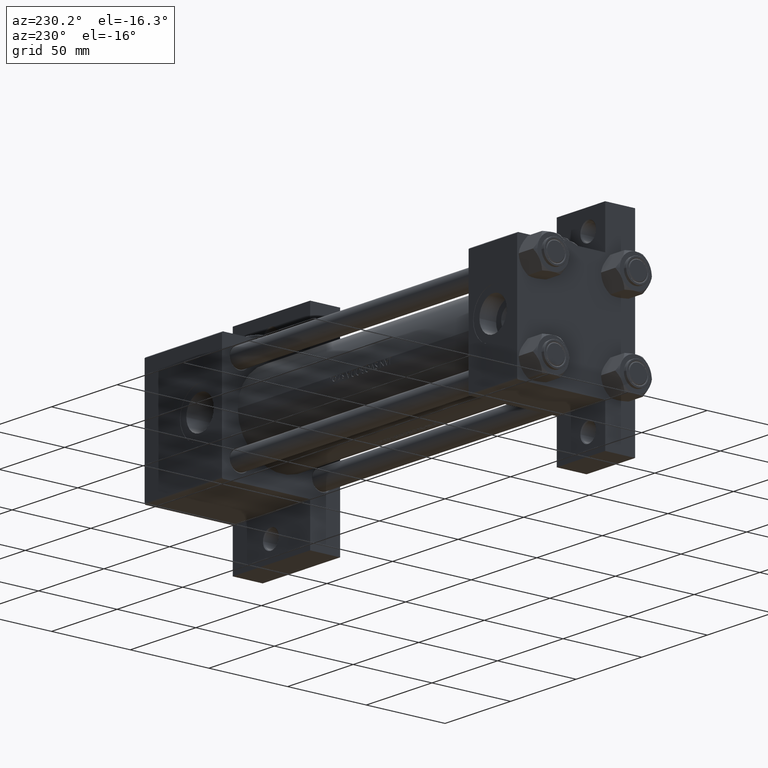
[diagram: clean part render]
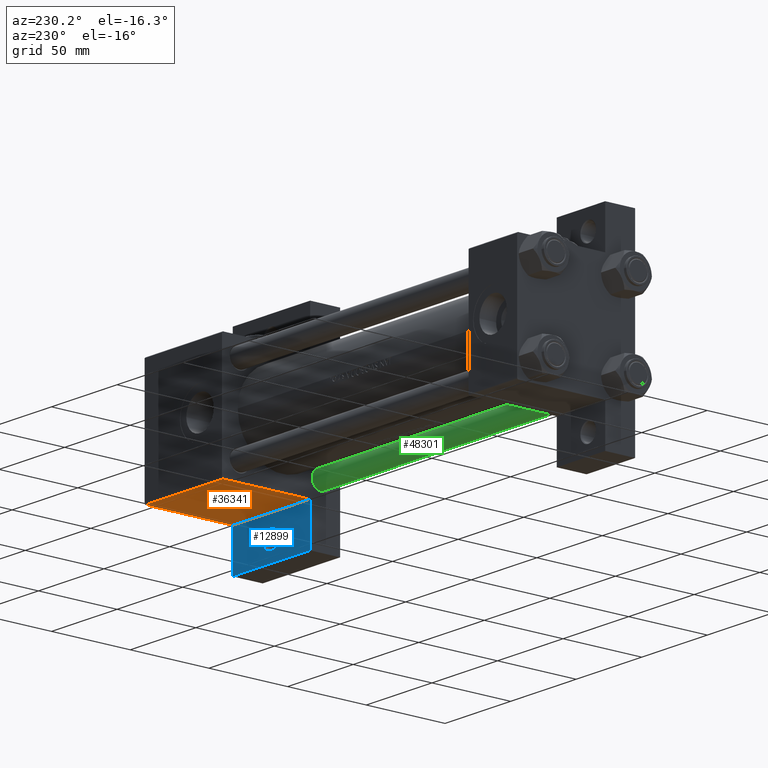
[diagram: same view with three faces highlighted in distinct colors, each labeled with its STEP entity id]
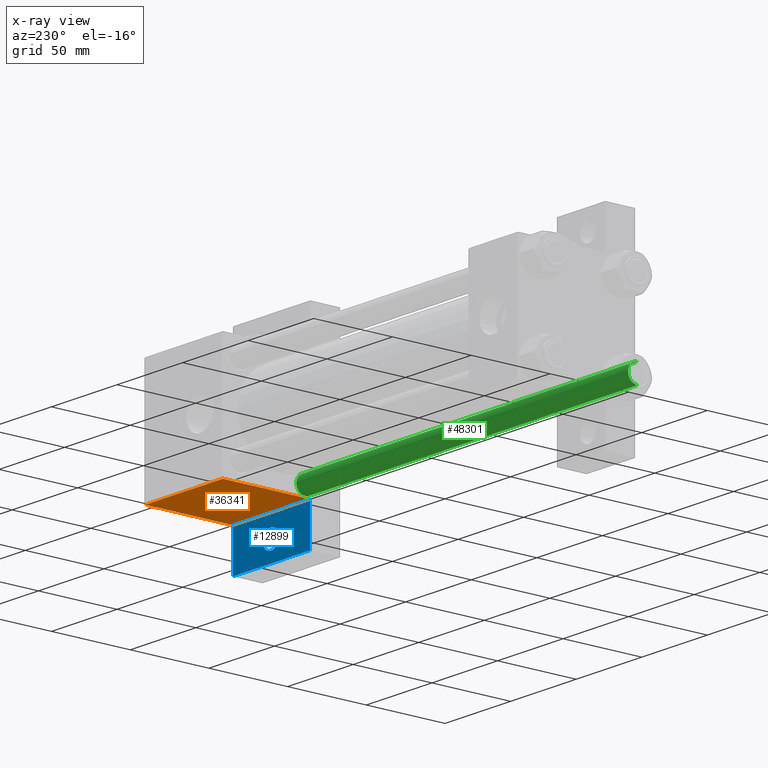
[diagram: x-ray of the same camera — body ghosted, the three highlighted faces saturated]
A machine part, auxiliary view with three faces highlighted in distinct colors.
The next image is the same camera in x-ray (body ghosted, the three faces saturated) — at least one of them is partly hidden behind the body in this view.
Their STEP definitions:

[orange] entity #36341 — the highlighted planar face has unit normal (0, 0, -1).
#225 = LINE ( 'NONE', #7998, #8694 ) ;
#1497 = VECTOR ( 'NONE', #32922, 1000.000000000000000 ) ;
#2324 = DIRECTION ( 'NONE',  ( -1.000000000000000000, 8.232585987686542394E-16, -0.000000000000000000 ) ) ;
#2796 = CARTESIAN_POINT ( 'NONE',  ( 225.0000000000000000, 37.50000000000000000, -18.50000000000000355 ) ) ;
#4299 = CARTESIAN_POINT ( 'NONE',  ( 284.0000000000000568, 37.50000000000000000, 37.49999999999999289 ) ) ;
#5156 = EDGE_LOOP ( 'NONE', ( #27177, #25109, #43559, #41356 ) ) ;
#7086 = DIRECTION ( 'NONE',  ( 0.000000000000000000, -0.000000000000000000, 1.000000000000000000 ) ) ;
#7998 = CARTESIAN_POINT ( 'NONE',  ( 225.0000000000000000, 37.50000000000000000, 37.49999999999999289 ) ) ;
#8694 = VECTOR ( 'NONE', #31070, 1000.000000000000000 ) ;
#13186 = EDGE_CURVE ( 'NONE', #38736, #15064, #35686, .T. ) ;
#13568 = CARTESIAN_POINT ( 'NONE',  ( 284.0000000000000568, 37.50000000000000000, 36.99999999999993605 ) ) ;
#14323 = VERTEX_POINT ( 'NONE', #28110 ) ;
#15064 = VERTEX_POINT ( 'NONE', #2796 ) ;
#19361 = FACE_OUTER_BOUND ( 'NONE', #5156, .T. ) ;
#19614 = DIRECTION ( 'NONE',  ( -0.000000000000000000, 1.000000000000000000, 0.000000000000000000 ) ) ;
#20891 = CARTESIAN_POINT ( 'NONE',  ( 225.0000000000000284, 37.50000000000000000, -18.50000000000000000 ) ) ;
#25109 = ORIENTED_EDGE ( 'NONE', *, *, #26526, .T. ) ;
#26526 = EDGE_CURVE ( 'NONE', #14323, #30710, #47914, .T. ) ;
#27177 = ORIENTED_EDGE ( 'NONE', *, *, #48909, .F. ) ;
#28110 = CARTESIAN_POINT ( 'NONE',  ( 225.0000000000000000, 37.50000000000000000, 36.99999999999993605 ) ) ;
#28842 = DIRECTION ( 'NONE',  ( 1.000000000000000000, 0.000000000000000000, 0.000000000000000000 ) ) ;
#29686 = VECTOR ( 'NONE', #28842, 1000.000000000000000 ) ;
#30710 = VERTEX_POINT ( 'NONE', #39448 ) ;
#31070 = DIRECTION ( 'NONE',  ( 0.000000000000000000, 0.000000000000000000, -1.000000000000000000 ) ) ;
#32677 = LINE ( 'NONE', #43962, #1497 ) ;
#32922 = DIRECTION ( 'NONE',  ( 0.000000000000000000, 0.000000000000000000, -1.000000000000000000 ) ) ;
#33061 = CARTESIAN_POINT ( 'NONE',  ( 284.0000000000000568, 37.49999999999995026, -18.50000000000000000 ) ) ;
#34649 = PLANE ( 'NONE',  #46828 ) ;
#35686 = LINE ( 'NONE', #20891, #47502 ) ;
#36341 = ADVANCED_FACE ( 'NONE', ( #19361 ), #34649, .T. ) ;
#38736 = VERTEX_POINT ( 'NONE', #33061 ) ;
#39448 = CARTESIAN_POINT ( 'NONE',  ( 284.0000000000000568, 37.50000000000000000, 36.99999999999993605 ) ) ;
#41356 = ORIENTED_EDGE ( 'NONE', *, *, #13186, .T. ) ;
#43559 = ORIENTED_EDGE ( 'NONE', *, *, #48786, .T. ) ;
#43962 = CARTESIAN_POINT ( 'NONE',  ( 284.0000000000000568, 37.50000000000000000, 37.49999999999999289 ) ) ;
#46828 = AXIS2_PLACEMENT_3D ( 'NONE', #4299, #19614, #7086 ) ;
#47502 = VECTOR ( 'NONE', #2324, 1000.000000000000000 ) ;
#47914 = LINE ( 'NONE', #13568, #29686 ) ;
#48786 = EDGE_CURVE ( 'NONE', #30710, #38736, #32677, .T. ) ;
#48909 = EDGE_CURVE ( 'NONE', #14323, #15064, #225, .T. ) ;

[blue] entity #12899 — the highlighted planar face has unit normal (0, 1, 0).
#484 = CARTESIAN_POINT ( 'NONE',  ( 284.0000000000000568, 63.49999999999997158, -18.50000000000000000 ) ) ;
#2324 = DIRECTION ( 'NONE',  ( -1.000000000000000000, 8.232585987686542394E-16, -0.000000000000000000 ) ) ;
#2480 = DIRECTION ( 'NONE',  ( 1.000000000000000000, 0.000000000000000000, 0.000000000000000000 ) ) ;
#2610 = EDGE_CURVE ( 'NONE', #13896, #38516, #2639, .T. ) ;
#2639 = LINE ( 'NONE', #24949, #4792 ) ;
#2796 = CARTESIAN_POINT ( 'NONE',  ( 225.0000000000000000, 37.50000000000000000, -18.50000000000000355 ) ) ;
#3179 = FACE_OUTER_BOUND ( 'NONE', #33678, .T. ) ;
#3656 = EDGE_CURVE ( 'NONE', #36217, #42935, #47299, .T. ) ;
#4339 = CARTESIAN_POINT ( 'NONE',  ( 284.0000000000000568, 63.49999999999997158, -18.50000000000000000 ) ) ;
#4792 = VECTOR ( 'NONE', #14184, 1000.000000000000000 ) ;
#5083 = LINE ( 'NONE', #4339, #10206 ) ;
#10206 = VECTOR ( 'NONE', #39451, 1000.000000000000000 ) ;
#11211 = PLANE ( 'NONE',  #38629 ) ;
#12899 = ADVANCED_FACE ( 'NONE', ( #49074, #3179 ), #11211, .T. ) ;
#13186 = EDGE_CURVE ( 'NONE', #38736, #15064, #35686, .T. ) ;
#13768 = EDGE_CURVE ( 'NONE', #42935, #36217, #15471, .T. ) ;
#13896 = VERTEX_POINT ( 'NONE', #32178 ) ;
#14184 = DIRECTION ( 'NONE',  ( 1.000000000000000000, -4.704334850106595794E-16, 0.000000000000000000 ) ) ;
#14461 = CARTESIAN_POINT ( 'NONE',  ( 225.0000000000000284, 63.50000000000000000, -18.50000000000000000 ) ) ;
#15064 = VERTEX_POINT ( 'NONE', #2796 ) ;
#15471 = CIRCLE ( 'NONE', #21870, 5.999500000000212552 ) ;
#16116 = ORIENTED_EDGE ( 'NONE', *, *, #2610, .F. ) ;
#16724 = ORIENTED_EDGE ( 'NONE', *, *, #13768, .T. ) ;
#18073 = EDGE_CURVE ( 'NONE', #15064, #13896, #37289, .T. ) ;
#18454 = AXIS2_PLACEMENT_3D ( 'NONE', #29554, #18525, #2480 ) ;
#18525 = DIRECTION ( 'NONE',  ( -0.000000000000000000, -0.000000000000000000, -1.000000000000000000 ) ) ;
#18986 = CARTESIAN_POINT ( 'NONE',  ( 0.000000000000000000, 0.000000000000000000, -18.50000000000000000 ) ) ;
#20891 = CARTESIAN_POINT ( 'NONE',  ( 225.0000000000000284, 37.50000000000000000, -18.50000000000000000 ) ) ;
#21870 = AXIS2_PLACEMENT_3D ( 'NONE', #29966, #30704, #37253 ) ;
#24949 = CARTESIAN_POINT ( 'NONE',  ( 225.0000000000000284, 63.50000000000000000, -18.50000000000000000 ) ) ;
#27270 = ORIENTED_EDGE ( 'NONE', *, *, #3656, .T. ) ;
#28111 = EDGE_LOOP ( 'NONE', ( #16724, #27270 ) ) ;
#29554 = CARTESIAN_POINT ( 'NONE',  ( 255.0000000000000000, 51.00000000000000000, -18.50000000000000000 ) ) ;
#29966 = CARTESIAN_POINT ( 'NONE',  ( 255.0000000000000000, 51.00000000000000000, -18.50000000000000000 ) ) ;
#30704 = DIRECTION ( 'NONE',  ( -0.000000000000000000, -0.000000000000000000, -1.000000000000000000 ) ) ;
#32178 = CARTESIAN_POINT ( 'NONE',  ( 225.0000000000000284, 63.50000000000000000, -18.50000000000000000 ) ) ;
#33061 = CARTESIAN_POINT ( 'NONE',  ( 284.0000000000000568, 37.49999999999995026, -18.50000000000000000 ) ) ;
#33678 = EDGE_LOOP ( 'NONE', ( #45731, #38821, #45705, #16116 ) ) ;
#34654 = CARTESIAN_POINT ( 'NONE',  ( 260.9995000000002392, 51.00000000000000000, -18.50000000000000000 ) ) ;
#35686 = LINE ( 'NONE', #20891, #47502 ) ;
#36217 = VERTEX_POINT ( 'NONE', #36947 ) ;
#36947 = CARTESIAN_POINT ( 'NONE',  ( 249.0004999999997892, 51.00000000000000000, -18.50000000000000000 ) ) ;
#37253 = DIRECTION ( 'NONE',  ( 1.000000000000000000, 0.000000000000000000, 0.000000000000000000 ) ) ;
#37289 = LINE ( 'NONE', #14461, #47651 ) ;
#37536 = DIRECTION ( 'NONE',  ( -0.000000000000000000, 1.000000000000000000, -0.000000000000000000 ) ) ;
#38286 = DIRECTION ( 'NONE',  ( 1.000000000000000000, 0.000000000000000000, -0.000000000000000000 ) ) ;
#38516 = VERTEX_POINT ( 'NONE', #484 ) ;
#38629 = AXIS2_PLACEMENT_3D ( 'NONE', #18986, #49323, #38286 ) ;
#38736 = VERTEX_POINT ( 'NONE', #33061 ) ;
#38821 = ORIENTED_EDGE ( 'NONE', *, *, #13186, .F. ) ;
#39451 = DIRECTION ( 'NONE',  ( 0.000000000000000000, -1.000000000000000000, 0.000000000000000000 ) ) ;
#42935 = VERTEX_POINT ( 'NONE', #34654 ) ;
#45705 = ORIENTED_EDGE ( 'NONE', *, *, #46519, .F. ) ;
#45731 = ORIENTED_EDGE ( 'NONE', *, *, #18073, .F. ) ;
#46519 = EDGE_CURVE ( 'NONE', #38516, #38736, #5083, .T. ) ;
#47299 = CIRCLE ( 'NONE', #18454, 5.999500000000212552 ) ;
#47502 = VECTOR ( 'NONE', #2324, 1000.000000000000000 ) ;
#47651 = VECTOR ( 'NONE', #37536, 1000.000000000000000 ) ;
#49074 = FACE_BOUND ( 'NONE', #28111, .T. ) ;
#49323 = DIRECTION ( 'NONE',  ( 0.000000000000000000, 0.000000000000000000, 1.000000000000000000 ) ) ;

[green] entity #48301 — the highlighted cylindrical surface (edge-blend (fillet) strip) has radius 6 mm, axis along (-1, 0, 0).
#395 = CARTESIAN_POINT ( 'NONE',  ( -6.000000000000000888, 0.000000000000000000, 0.5000000000000004441 ) ) ;
#2207 = FACE_OUTER_BOUND ( 'NONE', #17614, .T. ) ;
#3734 = EDGE_CURVE ( 'NONE', #8001, #40917, #11986, .T. ) ;
#4556 = ORIENTED_EDGE ( 'NONE', *, *, #22596, .T. ) ;
#4828 = VECTOR ( 'NONE', #8210, 1000.000000000000000 ) ;
#6047 = AXIS2_PLACEMENT_3D ( 'NONE', #39047, #47061, #12719 ) ;
#7721 = CARTESIAN_POINT ( 'NONE',  ( -6.000000000000000888, 0.000000000000000000, 254.0000000000000000 ) ) ;
#7880 = VERTEX_POINT ( 'NONE', #9507 ) ;
#8001 = VERTEX_POINT ( 'NONE', #26264 ) ;
#8210 = DIRECTION ( 'NONE',  ( -0.000000000000000000, -0.000000000000000000, -1.000000000000000000 ) ) ;
#9507 = CARTESIAN_POINT ( 'NONE',  ( 6.000000000000000888, 7.347880794884120722E-16, 0.5000000000000004441 ) ) ;
#9896 = CARTESIAN_POINT ( 'NONE',  ( 0.000000000000000000, 0.000000000000000000, 253.5000000000000568 ) ) ;
#11986 = LINE ( 'NONE', #7721, #4828 ) ;
#12719 = DIRECTION ( 'NONE',  ( 1.000000000000000000, 0.000000000000000000, 0.000000000000000000 ) ) ;
#13667 = DIRECTION ( 'NONE',  ( 1.000000000000000000, 0.000000000000000000, 0.000000000000000000 ) ) ;
#13992 = DIRECTION ( 'NONE',  ( -0.000000000000000000, -0.000000000000000000, -1.000000000000000000 ) ) ;
#15612 = VECTOR ( 'NONE', #17565, 1000.000000000000000 ) ;
#16234 = ORIENTED_EDGE ( 'NONE', *, *, #19943, .T. ) ;
#17565 = DIRECTION ( 'NONE',  ( -0.000000000000000000, -0.000000000000000000, -1.000000000000000000 ) ) ;
#17614 = EDGE_LOOP ( 'NONE', ( #45033, #4556, #24804, #16234 ) ) ;
#19943 = EDGE_CURVE ( 'NONE', #40917, #7880, #33302, .T. ) ;
#21271 = CYLINDRICAL_SURFACE ( 'NONE', #33470, 6.000000000000000888 ) ;
#22160 = CIRCLE ( 'NONE', #36599, 6.000000000000000888 ) ;
#22596 = EDGE_CURVE ( 'NONE', #43015, #8001, #22160, .T. ) ;
#24804 = ORIENTED_EDGE ( 'NONE', *, *, #3734, .T. ) ;
#24925 = DIRECTION ( 'NONE',  ( 0.000000000000000000, 0.000000000000000000, -1.000000000000000000 ) ) ;
#26042 = CARTESIAN_POINT ( 'NONE',  ( 6.000000000000000888, 7.347880794884120722E-16, 254.0000000000000000 ) ) ;
#26264 = CARTESIAN_POINT ( 'NONE',  ( -6.000000000000000888, 0.000000000000000000, 253.5000000000000568 ) ) ;
#30078 = LINE ( 'NONE', #26042, #15612 ) ;
#33302 = CIRCLE ( 'NONE', #6047, 6.000000000000000888 ) ;
#33470 = AXIS2_PLACEMENT_3D ( 'NONE', #37314, #13992, #41323 ) ;
#36599 = AXIS2_PLACEMENT_3D ( 'NONE', #9896, #24925, #13667 ) ;
#37314 = CARTESIAN_POINT ( 'NONE',  ( 0.000000000000000000, 0.000000000000000000, 254.0000000000000000 ) ) ;
#39047 = CARTESIAN_POINT ( 'NONE',  ( 0.000000000000000000, 0.000000000000000000, 0.5000000000000004441 ) ) ;
#40769 = EDGE_CURVE ( 'NONE', #43015, #7880, #30078, .T. ) ;
#40917 = VERTEX_POINT ( 'NONE', #395 ) ;
#41323 = DIRECTION ( 'NONE',  ( -1.000000000000000000, 0.000000000000000000, 0.000000000000000000 ) ) ;
#43015 = VERTEX_POINT ( 'NONE', #44654 ) ;
#44654 = CARTESIAN_POINT ( 'NONE',  ( 6.000000000000000888, 7.347880794884120722E-16, 253.5000000000000568 ) ) ;
#45033 = ORIENTED_EDGE ( 'NONE', *, *, #40769, .F. ) ;
#47061 = DIRECTION ( 'NONE',  ( -0.000000000000000000, -0.000000000000000000, 1.000000000000000000 ) ) ;
#48301 = ADVANCED_FACE ( 'NONE', ( #2207 ), #21271, .T. ) ;